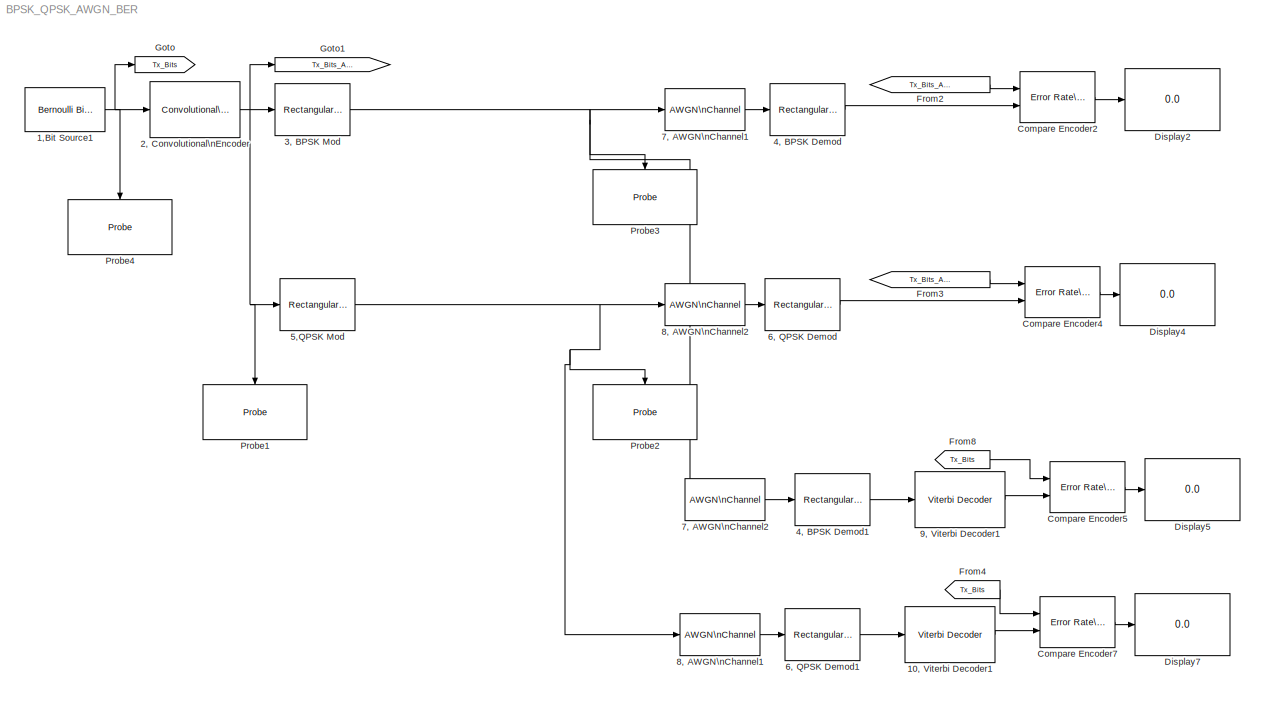
MODEL BPSK_QPSK_AWGN_BER
KIND model
CONFIG PreLoadFcn = bitRate = 500000;\nbitsPerFrame = 200;\nmaxDopplerShift = 200;\ndelayVector = [0:3]*(4e-6);\ngainVector = [0:3]*(-3);\nLOSDopplerShift = 100;\nKFactor = 10;
BLOCK [Reference] 1,Bit Source1  REF=commrandsrc2/Bernoulli Binary\nGenerator
  P = 0.5
  Ports = [0, 1]
  SID = 1
  SourceBlock = commrandsrc2/Bernoulli Binary\nGenerator
  SourceType = Bernoulli Binary Generator
  Ts = 2e-006
  frameBased = on
  orient = off
  outDataType = double
  sampPerFrame = 8
  seed = 61
BLOCK [Reference] 10, Viterbi Decoder1  REF=commcnvcod2/Viterbi Decoder
  Ports = [1, 1]
  SID = 39
  SourceBlock = commcnvcod2/Viterbi Decoder
  SourceType = Viterbi Decoder
  dectype = Hard decision
  delayedResetAction = off
  erasures = off
  isPunctured = off
  nsdecb = 4
  opmode = Continuous
  outDataType = Inherit via internal rule
  punctureVector = [1; 1; 0; 1; 0; 1]
  reset = off
  runSigValErrCheck = off
  smWordLength = 16
  tbdepth = 34
  trellis = poly2trellis(7, [171 133])
BLOCK [Reference] 2, Convolutional\nEncoder  REF=commcnvcod2/Convolutional\nEncoder
  DelayedResetAction = off
  Ports = [1, 1]
  SID = 3
  SourceBlock = commcnvcod2/Convolutional\nEncoder
  SourceType = Convolutional Encoder
  hasFinStPort = off
  hasIniStPort = off
  opMode = Continuous
  punctureVector = [1; 1; 0; 1; 0; 1]
  reset = Unused parameter value
  trellis = poly2trellis(7, [171 133])
  usePuncVector = off
BLOCK [Reference] 3, BPSK Mod  REF=commdigbbndam3/Rectangular QAM\nModulator\nBaseband
  AvgPow = 1
  Enc = Gray
  InType = Bit
  M = 2
  Mapping = [0,1,2,3]
  MinDist = 2
  PeakPow = 1
  Ph = 0
  Ports = [1, 1]
  PowType = Average Power
  SID = 4
  SourceBlock = commdigbbndam3/Rectangular QAM\nModulator\nBaseband
  SourceType = Rectangular QAM Modulator Baseband
  outDtype = double
  outFracLen = 15
  outFracLenMode = Best precision
  outUDDataType = sfix(16)
  outWordLen = 16
BLOCK [Reference] 4, BPSK Demod  REF=commdigbbndam3/Rectangular QAM\nDemodulator\nBaseband
  AvgPow = 1
  Dec = Gray
  DecType = Hard decision
  M = 2
  Mapping = [0:15]
  MinDist = 2
  OutType = Bit
  PeakPow = 1
  Ph = 0
  Ports = [1, 1]
  PowType = Average Power
  SID = 5
  SourceBlock = commdigbbndam3/Rectangular QAM\nDemodulator\nBaseband
  SourceType = Rectangular QAM Demodulator Baseband
  VarSource = Dialog
  Variance = 1
  denormFactorDTMode = Same word length as input
  denormFactorWordLen = 16
  derotateFactorDTMode = Same word length as input
  derotateFactorWordLen = 16
  outDtype1 = Inherit via internal rule
  outDtype2 = Inherit via internal rule
  prodOutDTMode = Inherit via internal rule
  prodOutOverflowMode = Wrap
  prodOutRoundingMode = Floor
  prodOutWordLen = 32
  sumDTMode = Inherit via internal rule
  sumWordLen = 32
BLOCK [Reference] 4, BPSK Demod1  REF=commdigbbndam3/Rectangular QAM\nDemodulator\nBaseband
  AvgPow = 1
  Dec = Gray
  DecType = Hard decision
  M = 2
  Mapping = [0:15]
  MinDist = 2
  OutType = Bit
  PeakPow = 1
  Ph = 0
  Ports = [1, 1]
  PowType = Average Power
  SID = 40
  SourceBlock = commdigbbndam3/Rectangular QAM\nDemodulator\nBaseband
  SourceType = Rectangular QAM Demodulator Baseband
  VarSource = Dialog
  Variance = 1
  denormFactorDTMode = Same word length as input
  denormFactorWordLen = 16
  derotateFactorDTMode = Same word length as input
  derotateFactorWordLen = 16
  outDtype1 = Inherit via internal rule
  outDtype2 = Inherit via internal rule
  prodOutDTMode = Inherit via internal rule
  prodOutOverflowMode = Wrap
  prodOutRoundingMode = Floor
  prodOutWordLen = 32
  sumDTMode = Inherit via internal rule
  sumWordLen = 32
BLOCK [Reference] 5,QPSK Mod  REF=commdigbbndam3/Rectangular QAM\nModulator\nBaseband
  AvgPow = 1
  Enc = Gray
  InType = Bit
  M = 4
  Mapping = [0,1,2,3]
  MinDist = 2
  PeakPow = 1
  Ph = -pi/2
  Ports = [1, 1]
  PowType = Average Power
  SID = 6
  SourceBlock = commdigbbndam3/Rectangular QAM\nModulator\nBaseband
  SourceType = Rectangular QAM Modulator Baseband
  outDtype = double
  outFracLen = 15
  outFracLenMode = Best precision
  outUDDataType = sfix(16)
  outWordLen = 16
BLOCK [Reference] 6, QPSK Demod  REF=commdigbbndam3/Rectangular QAM\nDemodulator\nBaseband
  AvgPow = 1
  Dec = Gray
  DecType = Hard decision
  M = 4
  Mapping = [0:15]
  MinDist = 2
  OutType = Bit
  PeakPow = 1
  Ph = -pi/2
  Ports = [1, 1]
  PowType = Average Power
  SID = 7
  SourceBlock = commdigbbndam3/Rectangular QAM\nDemodulator\nBaseband
  SourceType = Rectangular QAM Demodulator Baseband
  VarSource = Dialog
  Variance = 1
  denormFactorDTMode = Same word length as input
  denormFactorWordLen = 16
  derotateFactorDTMode = Same word length as input
  derotateFactorWordLen = 16
  outDtype1 = Inherit via internal rule
  outDtype2 = Inherit via internal rule
  prodOutDTMode = Inherit via internal rule
  prodOutOverflowMode = Wrap
  prodOutRoundingMode = Floor
  prodOutWordLen = 32
  sumDTMode = Inherit via internal rule
  sumWordLen = 32
BLOCK [Reference] 6, QPSK Demod1  REF=commdigbbndam3/Rectangular QAM\nDemodulator\nBaseband
  AvgPow = 1
  Dec = Gray
  DecType = Hard decision
  M = 4
  Mapping = [0:15]
  MinDist = 2
  OutType = Bit
  PeakPow = 1
  Ph = -pi/2
  Ports = [1, 1]
  PowType = Average Power
  SID = 41
  SourceBlock = commdigbbndam3/Rectangular QAM\nDemodulator\nBaseband
  SourceType = Rectangular QAM Demodulator Baseband
  VarSource = Dialog
  Variance = 1
  denormFactorDTMode = Same word length as input
  denormFactorWordLen = 16
  derotateFactorDTMode = Same word length as input
  derotateFactorWordLen = 16
  outDtype1 = Inherit via internal rule
  outDtype2 = Inherit via internal rule
  prodOutDTMode = Inherit via internal rule
  prodOutOverflowMode = Wrap
  prodOutRoundingMode = Floor
  prodOutWordLen = 32
  sumDTMode = Inherit via internal rule
  sumWordLen = 32
BLOCK [Reference] 7, AWGN\nChannel1  REF=commchan3/AWGN\nChannel
  EbNodB = 5
  EsNodB = 6
  InputProcessing = Inherited (this choice will be removed - see release notes)
  Ports = [1, 1]
  Ps = 1
  SID = 8
  SNRdB = 10
  SourceBlock = commchan3/AWGN\nChannel
  SourceType = AWGN Channel
  Tsym = 1.0000e-006
  UserData = DataTag0
  UserDataPersistent = on
  bitsPerSym = 1
  noiseMode = Signal to noise ratio  (Es/No)
  seed = 67
  variance = 1
BLOCK [Reference] 7, AWGN\nChannel2  REF=commchan3/AWGN\nChannel
  EbNodB = 5
  EsNodB = 6-3
  InputProcessing = Inherited (this choice will be removed - see release notes)
  Ports = [1, 1]
  Ps = 1
  SID = 42
  SNRdB = 10
  SourceBlock = commchan3/AWGN\nChannel
  SourceType = AWGN Channel
  Tsym = 1.0000e-006
  UserData = DataTag1
  UserDataPersistent = on
  bitsPerSym = 1
  noiseMode = Signal to noise ratio  (Es/No)
  seed = 67
  variance = 1
BLOCK [Reference] 8, AWGN\nChannel1  REF=commchan3/AWGN\nChannel
  EbNodB = 5
  EsNodB = 6
  InputProcessing = Inherited (this choice will be removed - see release notes)
  Ports = [1, 1]
  Ps = 1
  SID = 43
  SNRdB = 10
  SourceBlock = commchan3/AWGN\nChannel
  SourceType = AWGN Channel
  Tsym = 1.0000e-006*2
  UserData = DataTag2
  UserDataPersistent = on
  bitsPerSym = 2
  noiseMode = Signal to noise ratio  (Es/No)
  seed = 67
  variance = 1
BLOCK [Reference] 8, AWGN\nChannel2  REF=commchan3/AWGN\nChannel
  EbNodB = 5
  EsNodB = 6+3
  InputProcessing = Inherited (this choice will be removed - see release notes)
  Ports = [1, 1]
  Ps = 1
  SID = 9
  SNRdB = 10
  SourceBlock = commchan3/AWGN\nChannel
  SourceType = AWGN Channel
  Tsym = 1.0000e-006*2
  UserData = DataTag3
  UserDataPersistent = on
  bitsPerSym = 2
  noiseMode = Signal to noise ratio  (Es/No)
  seed = 67
  variance = 1
BLOCK [Reference] 9, Viterbi Decoder1  REF=commcnvcod2/Viterbi Decoder
  Ports = [1, 1]
  SID = 44
  SourceBlock = commcnvcod2/Viterbi Decoder
  SourceType = Viterbi Decoder
  dectype = Hard decision
  delayedResetAction = off
  erasures = off
  isPunctured = off
  nsdecb = 4
  opmode = Continuous
  outDataType = Inherit via internal rule
  punctureVector = [1; 1; 0; 1; 0; 1]
  reset = off
  runSigValErrCheck = off
  smWordLength = 16
  tbdepth = 34
  trellis = poly2trellis(7, [171 133])
BLOCK [Reference] Compare Encoder2  REF=commsink2/Error Rate\nCalculation
  N = 0
  PMode = Port
  Ports = [2, 1]
  RsMode2 = off
  SID = 12
  SourceBlock = commsink2/Error Rate\nCalculation
  SourceType = Error Rate Calculation
  WsName = ErrorVec
  cp_mode = Entire frame
  maxBits = 1e6
  numErr = 100
  st_delay = 0
  stop = off
  subframe = []
BLOCK [Reference] Compare Encoder4  REF=commsink2/Error Rate\nCalculation
  N = 0
  PMode = Port
  Ports = [2, 1]
  RsMode2 = off
  SID = 14
  SourceBlock = commsink2/Error Rate\nCalculation
  SourceType = Error Rate Calculation
  WsName = ErrorVec
  cp_mode = Entire frame
  maxBits = 1e6
  numErr = 100
  st_delay = 0
  stop = off
  subframe = []
BLOCK [Reference] Compare Encoder5  REF=commsink2/Error Rate\nCalculation
  N = 34
  PMode = Port
  Ports = [2, 1]
  RsMode2 = off
  SID = 45
  SourceBlock = commsink2/Error Rate\nCalculation
  SourceType = Error Rate Calculation
  WsName = ErrorVec
  cp_mode = Entire frame
  maxBits = 1e6
  numErr = 100
  st_delay = 0
  stop = off
  subframe = []
BLOCK [Reference] Compare Encoder7  REF=commsink2/Error Rate\nCalculation
  N = 34
  PMode = Port
  Ports = [2, 1]
  RsMode2 = off
  SID = 47
  SourceBlock = commsink2/Error Rate\nCalculation
  SourceType = Error Rate Calculation
  WsName = ErrorVec
  cp_mode = Entire frame
  maxBits = 1e6
  numErr = 100
  st_delay = 0
  stop = off
  subframe = []
BLOCK [Display] Display2
  Decimation = 1
  Lockdown = off
  Ports = [1]
  SID = 16
BLOCK [Display] Display4
  Decimation = 1
  Lockdown = off
  Ports = [1]
  SID = 18
BLOCK [Display] Display5
  Decimation = 1
  Lockdown = off
  Ports = [1]
  SID = 49
BLOCK [Display] Display7
  Decimation = 1
  Lockdown = off
  Ports = [1]
  SID = 51
BLOCK [From] From2
  CloseFcn = tagdialog Close
  GotoTag = Tx_Bits_After_Coding
  SID = 20
BLOCK [From] From3
  CloseFcn = tagdialog Close
  GotoTag = Tx_Bits_After_Coding
  SID = 21
BLOCK [From] From4
  CloseFcn = tagdialog Close
  GotoTag = Tx_Bits
  SID = 53
BLOCK [From] From8
  CloseFcn = tagdialog Close
  GotoTag = Tx_Bits
  SID = 56
BLOCK [Goto] Goto
  GotoTag = Tx_Bits
  SID = 23
BLOCK [Goto] Goto1
  GotoTag = Tx_Bits_After_Coding
  SID = 24
BLOCK [Probe] Probe1
  Ports = [1, 2]
  ProbeComplexSignal = off
  ProbeSampleTimeDataType = Same as input
  SID = 25
BLOCK [Probe] Probe2
  Ports = [1, 2]
  ProbeComplexSignal = off
  ProbeSampleTimeDataType = Same as input
  SID = 26
BLOCK [Probe] Probe3
  Ports = [1, 2]
  ProbeComplexSignal = off
  ProbeSampleTimeDataType = Same as input
  SID = 27
BLOCK [Probe] Probe4
  Ports = [1, 2]
  ProbeComplexSignal = off
  ProbeSampleTimeDataType = Same as input
  SID = 37
NET 1,Bit Source1:1 -> 2, Convolutional\nEncoder:1, Goto:1, Probe4:1
LINE 10, Viterbi Decoder1:1 -> Compare Encoder7:2
NET 2, Convolutional\nEncoder:1 -> 3, BPSK Mod:1, 5,QPSK Mod:1, Goto1:1, Probe1:1
NET 3, BPSK Mod:1 -> 7, AWGN\nChannel1:1, 7, AWGN\nChannel2:1, Probe3:1
LINE 4, BPSK Demod1:1 -> 9, Viterbi Decoder1:1
LINE 4, BPSK Demod:1 -> Compare Encoder2:2
NET 5,QPSK Mod:1 -> 8, AWGN\nChannel1:1, 8, AWGN\nChannel2:1, Probe2:1
LINE 6, QPSK Demod1:1 -> 10, Viterbi Decoder1:1
LINE 6, QPSK Demod:1 -> Compare Encoder4:2
LINE 7, AWGN\nChannel1:1 -> 4, BPSK Demod:1
LINE 7, AWGN\nChannel2:1 -> 4, BPSK Demod1:1
LINE 8, AWGN\nChannel1:1 -> 6, QPSK Demod1:1
LINE 8, AWGN\nChannel2:1 -> 6, QPSK Demod:1
LINE 9, Viterbi Decoder1:1 -> Compare Encoder5:2
LINE Compare Encoder2:1 -> Display2:1
LINE Compare Encoder4:1 -> Display4:1
LINE Compare Encoder5:1 -> Display5:1
LINE Compare Encoder7:1 -> Display7:1
LINE From2:1 -> Compare Encoder2:1
LINE From3:1 -> Compare Encoder4:1
LINE From4:1 -> Compare Encoder7:1
LINE From8:1 -> Compare Encoder5:1
note: NET lines group one-source signal fan-out (src -> all destinations, sorted); 1:1 wires keep LINE
